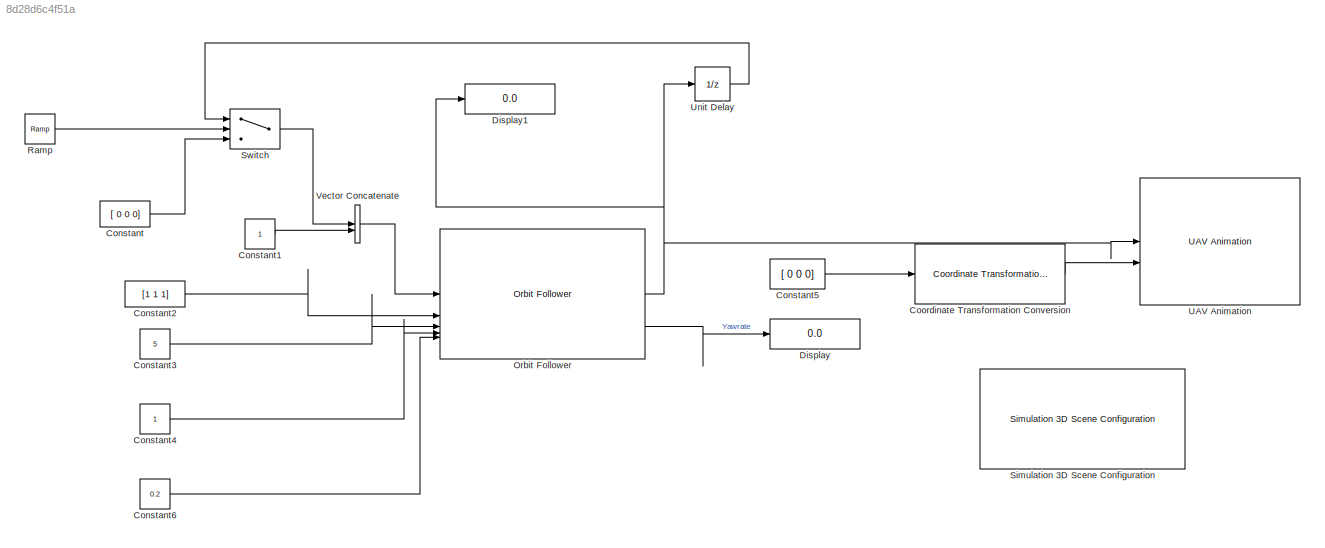
MODEL slx_8d28d6c4f51a
KIND model
CONFIG AbsTol = auto
CONFIG EnableMultiTasking = off
CONFIG FixedStep = auto
CONFIG MaxStep = auto
CONFIG MinStep = auto
CONFIG RelTol = 1e-3
CONFIG SampleTimeConstraint = Unconstrained
CONFIG SolverName = VariableStepAuto
CONFIG StartTime = 0.0
CONFIG StopTime = 10.0
BLOCK [Constant] Constant
  Value = [ 0 0 0]
BLOCK [Constant] Constant1
BLOCK [Constant] Constant2
  Value = [1 1 1]
BLOCK [Constant] Constant3
  Value = 5
BLOCK [Constant] Constant4
BLOCK [Constant] Constant5
  Value = [ 0 0 0]
BLOCK [Constant] Constant6
  Value = 0.2
BLOCK [Reference] Coordinate Transformation Conversion  REF=robotcorelib/Coordinate Transformation Conversion
  LibrarySourceBlock = uavutilslib/Coordinate Transformation Conversion
  SourceBlock = robotcorelib/Coordinate Transformation Conversion
  SourceType = robotics.slcore.internal.block.CoordinateTransformationConversion
BLOCK [Display] Display
  Decimation = 1
BLOCK [Display] Display1
  Decimation = 1
BLOCK [Reference] Orbit Follower  REF=uavalgslib/Orbit Follower
  SourceBlock = uavalgslib/Orbit Follower
  SourceType = uav.sluav.internal.system.OrbitFollower
BLOCK [Reference] Ramp  REF=simulink/Sources/Ramp
  SourceBlock = simulink/Sources/Ramp
  SourceType = Ramp
BLOCK [Reference] Simulation 3D Scene Configuration  REF=sim3dlib/Simulation 3D Scene Configuration
  LibrarySourceBlock = uavsim3dlib/Simulation 3D Scene Configuration
  Priority = 0
  SourceBlock = sim3dlib/Simulation 3D Scene Configuration
  SourceType = Simulation 3D Scene Configuration
BLOCK [Switch] Switch
  Criteria = u2 > Threshold
  InputSameDT = off
  SaturateOnIntegerOverflow = off
  Threshold = 5
BLOCK [Reference] UAV Animation  REF=uavutilslib/UAV Animation
  SourceBlock = uavutilslib/UAV Animation
  SourceType = uav.sluav.internal.system.UAVAnimation
BLOCK [UnitDelay] Unit Delay
  HasFrameUpgradeWarning = on
  SampleTime = -1
BLOCK [Concatenate] Vector Concatenate
LINE Constant1:1 -> Vector Concatenate:2
LINE Constant2:1 -> Orbit Follower:2
LINE Constant3:1 -> Orbit Follower:3
LINE Constant4:1 -> Orbit Follower:4
LINE Constant5:1 -> Coordinate Transformation Conversion:1
LINE Constant6:1 -> Orbit Follower:5
LINE Constant:1 -> Switch:3
LINE Coordinate Transformation Conversion:1 -> UAV Animation:2
NET Orbit Follower:1 -> Display1:1, UAV Animation:1, Unit Delay:1
LINE Orbit Follower:3 -> Display:1
LINE Ramp:1 -> Switch:2
LINE Switch:1 -> Vector Concatenate:1
LINE Unit Delay:1 -> Switch:1
LINE Vector Concatenate:1 -> Orbit Follower:1
note: NET lines group one-source signal fan-out (src -> all destinations, sorted); 1:1 wires keep LINE
